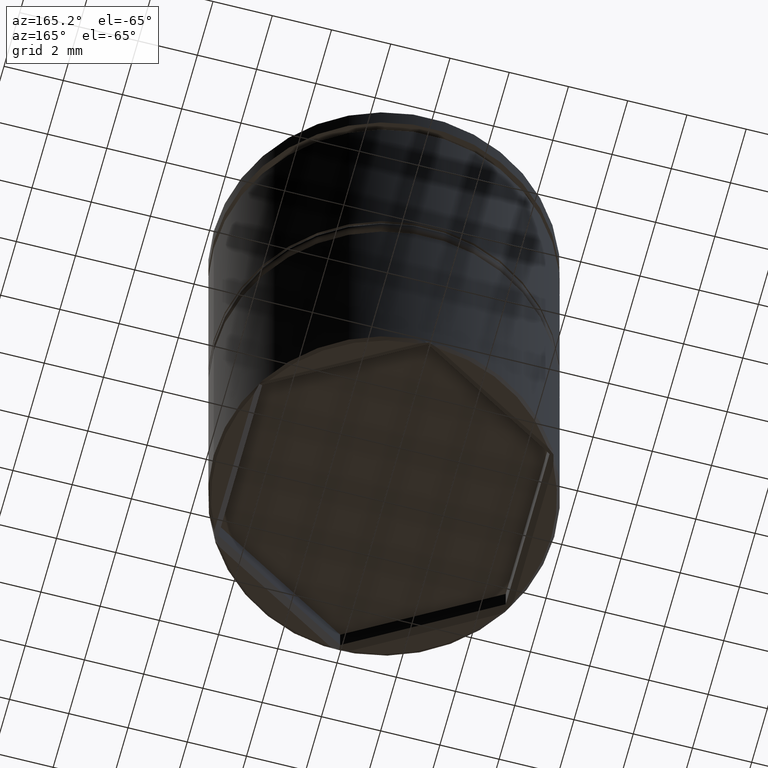
[diagram: clean part render]
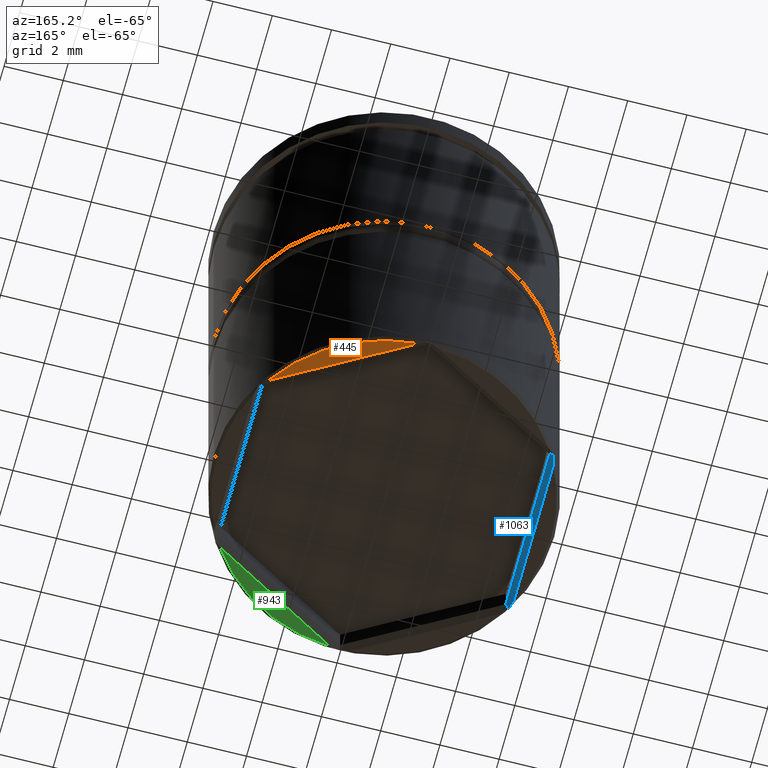
[diagram: same view with three faces highlighted in distinct colors, each labeled with its STEP entity id]
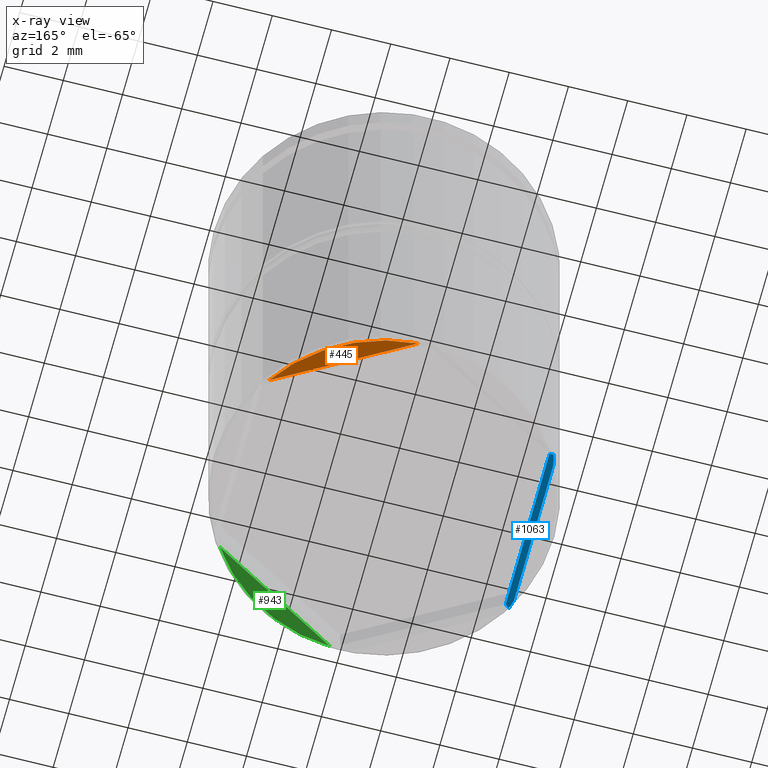
[diagram: x-ray of the same camera — body ghosted, the three highlighted faces saturated]
A machine part, auxiliary view with three faces highlighted in distinct colors.
The next image is the same camera in x-ray (body ghosted, the three faces saturated) — at least one of them is partly hidden behind the body in this view.
Their STEP definitions:

[orange] entity #445 — the highlighted planar face has unit normal (0, 0, -1).
#81 = VECTOR ( 'NONE', #757, 1000.000000000000000 ) ;
#85 = DIRECTION ( 'NONE',  ( -1.000000000000000000, 0.000000000000000000, -0.000000000000000000 ) ) ;
#99 = CARTESIAN_POINT ( 'NONE',  ( 0.000000000000000000, 5.750000000000000000, -17.50000000000000000 ) ) ;
#236 = CARTESIAN_POINT ( 'NONE',  ( 0.1000000000000011713, 5.773502691896253758, -17.50000000000000000 ) ) ;
#242 = AXIS2_PLACEMENT_3D ( 'NONE', #99, #614, #85 ) ;
#286 = DIRECTION ( 'NONE',  ( 0.000000000000000000, 0.000000000000000000, -1.000000000000000000 ) ) ;
#295 = FACE_OUTER_BOUND ( 'NONE', #732, .T. ) ;
#314 = AXIS2_PLACEMENT_3D ( 'NONE', #377, #286, #709 ) ;
#377 = CARTESIAN_POINT ( 'NONE',  ( 0.000000000000000000, 0.000000000000000000, -17.50000000000000000 ) ) ;
#445 = ADVANCED_FACE ( 'NONE', ( #295 ), #1150, .T. ) ;
#536 = CIRCLE ( 'NONE', #314, 5.649999999999996803 ) ;
#575 = CARTESIAN_POINT ( 'NONE',  ( 4.719310825749166050, 3.106542343179421906, -17.50000000000000000 ) ) ;
#614 = DIRECTION ( 'NONE',  ( 0.000000000000000000, 0.000000000000000000, -1.000000000000000000 ) ) ;
#672 = EDGE_CURVE ( 'NONE', #1110, #939, #1364, .T. ) ;
#709 = DIRECTION ( 'NONE',  ( -1.000000000000000000, 0.000000000000000000, 0.000000000000000000 ) ) ;
#732 = EDGE_LOOP ( 'NONE', ( #1004, #1327 ) ) ;
#757 = DIRECTION ( 'NONE',  ( -0.8660254037844387076, 0.4999999999999998335, 0.000000000000000000 ) ) ;
#939 = VERTEX_POINT ( 'NONE', #956 ) ;
#956 = CARTESIAN_POINT ( 'NONE',  ( 0.3306891742508298315, 5.640314235043404345, -17.50000000000000000 ) ) ;
#1004 = ORIENTED_EDGE ( 'NONE', *, *, #1206, .T. ) ;
#1110 = VERTEX_POINT ( 'NONE', #575 ) ;
#1150 = PLANE ( 'NONE',  #242 ) ;
#1206 = EDGE_CURVE ( 'NONE', #939, #1110, #536, .T. ) ;
#1327 = ORIENTED_EDGE ( 'NONE', *, *, #672, .T. ) ;
#1364 = LINE ( 'NONE', #236, #81 ) ;

[blue] entity #1063 — the highlighted planar face has unit normal (0.7071, 0, -0.7071).
#6 = VECTOR ( 'NONE', #1073, 1000.000000000000114 ) ;
#8 = LINE ( 'NONE', #435, #1136 ) ;
#25 = ORIENTED_EDGE ( 'NONE', *, *, #148, .F. ) ;
#38 = CARTESIAN_POINT ( 'NONE',  ( -5.023513024741943944, -2.645625147546241784, -17.47351302474194767 ) ) ;
#52 = EDGE_CURVE ( 'NONE', #400, #234, #1148, .T. ) ;
#68 = VERTEX_POINT ( 'NONE', #1066 ) ;
#86 = CARTESIAN_POINT ( 'NONE',  ( -4.849999999999996980, -2.800148805569682153, -17.30000000000000071 ) ) ;
#116 = VECTOR ( 'NONE', #291, 1000.000000000000114 ) ;
#148 = EDGE_CURVE ( 'NONE', #68, #877, #555, .T. ) ;
#163 = CARTESIAN_POINT ( 'NONE',  ( -4.965887281973972556, -2.867056359013011591, -17.41588728197397273 ) ) ;
#207 = CARTESIAN_POINT ( 'NONE',  ( -4.995443361553345341, 2.756751568350237935, -17.44544336155334818 ) ) ;
#232 = FACE_OUTER_BOUND ( 'NONE', #783, .T. ) ;
#234 = VERTEX_POINT ( 'NONE', #971 ) ;
#253 = EDGE_CURVE ( 'NONE', #285, #1230, #367, .T. ) ;
#285 = VERTEX_POINT ( 'NONE', #901 ) ;
#291 = DIRECTION ( 'NONE',  ( 0.6546536707079763096, 0.3779644730092298621, 0.6546536707079763096 ) ) ;
#343 = CARTESIAN_POINT ( 'NONE',  ( -5.049999999999998934, 2.533771891863980663, -17.50000000000000000 ) ) ;
#367 = B_SPLINE_CURVE_WITH_KNOTS ( 'NONE', 3,
 ( #921, #38, #368, #894 ),
 .UNSPECIFIED., .F., .F.,
 ( 4, 4 ),
 ( 0.000000000000000000, 0.0003538762985991933700 ),
 .UNSPECIFIED. ) ;
#368 = CARTESIAN_POINT ( 'NONE',  ( -4.995443361553347117, -2.756751568350238379, -17.44544336155334818 ) ) ;
#400 = VERTEX_POINT ( 'NONE', #86 ) ;
#421 = CARTESIAN_POINT ( 'NONE',  ( -4.849999999999996980, 2.800148805569683486, -17.30000000000000071 ) ) ;
#435 = CARTESIAN_POINT ( 'NONE',  ( -5.049999999999998934, -2.800148805569682153, -17.50000000000000000 ) ) ;
#456 = CARTESIAN_POINT ( 'NONE',  ( -5.049999999999998934, 2.533771891863980663, -17.50000000000000000 ) ) ;
#555 = B_SPLINE_CURVE_WITH_KNOTS ( 'NONE', 3,
 ( #1055, #207, #1061, #343 ),
 .UNSPECIFIED., .F., .F.,
 ( 4, 4 ),
 ( 0.000000000000000000, 0.0003538762985991938037 ),
 .UNSPECIFIED. ) ;
#562 = DIRECTION ( 'NONE',  ( 0.000000000000000000, -1.000000000000000000, 0.000000000000000000 ) ) ;
#573 = ORIENTED_EDGE ( 'NONE', *, *, #697, .F. ) ;
#620 = ORIENTED_EDGE ( 'NONE', *, *, #635, .T. ) ;
#635 = EDGE_CURVE ( 'NONE', #68, #234, #1094, .T. ) ;
#684 = VECTOR ( 'NONE', #1381, 1000.000000000000000 ) ;
#697 = EDGE_CURVE ( 'NONE', #877, #285, #8, .T. ) ;
#715 = LINE ( 'NONE', #931, #116 ) ;
#767 = DIRECTION ( 'NONE',  ( 0.7071067811865475727, 0.000000000000000000, -0.7071067811865475727 ) ) ;
#783 = EDGE_LOOP ( 'NONE', ( #620, #972, #1306, #1142, #573, #25 ) ) ;
#864 = DIRECTION ( 'NONE',  ( 0.000000000000000000, -1.000000000000000000, 0.000000000000000000 ) ) ;
#877 = VERTEX_POINT ( 'NONE', #456 ) ;
#894 = CARTESIAN_POINT ( 'NONE',  ( -4.965887281973972556, -2.867056359013011591, -17.41588728197397273 ) ) ;
#901 = CARTESIAN_POINT ( 'NONE',  ( -5.049999999999998934, -2.533771891863980663, -17.50000000000000000 ) ) ;
#921 = CARTESIAN_POINT ( 'NONE',  ( -5.049999999999998934, -2.533771891863980663, -17.50000000000000000 ) ) ;
#931 = CARTESIAN_POINT ( 'NONE',  ( -4.849999999999996980, -2.800148805569682153, -17.30000000000000071 ) ) ;
#971 = CARTESIAN_POINT ( 'NONE',  ( -4.849999999999996980, 2.800148805569683486, -17.30000000000000071 ) ) ;
#972 = ORIENTED_EDGE ( 'NONE', *, *, #52, .F. ) ;
#1055 = CARTESIAN_POINT ( 'NONE',  ( -4.965887281973971668, 2.867056359013012923, -17.41588728197397629 ) ) ;
#1061 = CARTESIAN_POINT ( 'NONE',  ( -5.023513024741943944, 2.645625147546241340, -17.47351302474194767 ) ) ;
#1063 = ADVANCED_FACE ( 'NONE', ( #232 ), #1084, .T. ) ;
#1066 = CARTESIAN_POINT ( 'NONE',  ( -4.965887281973971668, 2.867056359013012923, -17.41588728197397629 ) ) ;
#1068 = AXIS2_PLACEMENT_3D ( 'NONE', #1208, #767, #562 ) ;
#1073 = DIRECTION ( 'NONE',  ( 0.6546536707079774198, -0.3779644730092259763, 0.6546536707079774198 ) ) ;
#1084 = PLANE ( 'NONE',  #1068 ) ;
#1094 = LINE ( 'NONE', #1102, #6 ) ;
#1102 = CARTESIAN_POINT ( 'NONE',  ( -4.849999999999996980, 2.800148805569683486, -17.30000000000000071 ) ) ;
#1136 = VECTOR ( 'NONE', #864, 1000.000000000000000 ) ;
#1142 = ORIENTED_EDGE ( 'NONE', *, *, #253, .F. ) ;
#1148 = LINE ( 'NONE', #421, #684 ) ;
#1152 = EDGE_CURVE ( 'NONE', #1230, #400, #715, .T. ) ;
#1208 = CARTESIAN_POINT ( 'NONE',  ( -4.849999999999996980, -2.800148805569682153, -17.30000000000000071 ) ) ;
#1230 = VERTEX_POINT ( 'NONE', #163 ) ;
#1306 = ORIENTED_EDGE ( 'NONE', *, *, #1152, .F. ) ;
#1381 = DIRECTION ( 'NONE',  ( 0.000000000000000000, 1.000000000000000000, 0.000000000000000000 ) ) ;

[green] entity #943 — the highlighted planar face has unit normal (0, 0, -1).
#159 = VERTEX_POINT ( 'NONE', #1100 ) ;
#195 = CARTESIAN_POINT ( 'NONE',  ( 0.000000000000000000, 0.000000000000000000, -17.50000000000000000 ) ) ;
#300 = AXIS2_PLACEMENT_3D ( 'NONE', #195, #515, #953 ) ;
#312 = PLANE ( 'NONE',  #570 ) ;
#325 = ORIENTED_EDGE ( 'NONE', *, *, #387, .T. ) ;
#337 = VERTEX_POINT ( 'NONE', #616 ) ;
#387 = EDGE_CURVE ( 'NONE', #337, #159, #427, .T. ) ;
#418 = DIRECTION ( 'NONE',  ( 0.000000000000000000, 0.000000000000000000, -1.000000000000000000 ) ) ;
#427 = CIRCLE ( 'NONE', #300, 5.649999999999996803 ) ;
#515 = DIRECTION ( 'NONE',  ( 0.000000000000000000, 0.000000000000000000, -1.000000000000000000 ) ) ;
#570 = AXIS2_PLACEMENT_3D ( 'NONE', #936, #418, #1057 ) ;
#605 = FACE_OUTER_BOUND ( 'NONE', #853, .T. ) ;
#616 = CARTESIAN_POINT ( 'NONE',  ( 4.719310825749163385, -3.106542343179425458, -17.50000000000000000 ) ) ;
#721 = LINE ( 'NONE', #1368, #1112 ) ;
#853 = EDGE_LOOP ( 'NONE', ( #325, #995 ) ) ;
#936 = CARTESIAN_POINT ( 'NONE',  ( 0.000000000000000000, 5.750000000000000000, -17.50000000000000000 ) ) ;
#943 = ADVANCED_FACE ( 'NONE', ( #605 ), #312, .T. ) ;
#953 = DIRECTION ( 'NONE',  ( -1.000000000000000000, 0.000000000000000000, 0.000000000000000000 ) ) ;
#963 = EDGE_CURVE ( 'NONE', #159, #337, #721, .T. ) ;
#995 = ORIENTED_EDGE ( 'NONE', *, *, #963, .T. ) ;
#1057 = DIRECTION ( 'NONE',  ( -1.000000000000000000, 0.000000000000000000, -0.000000000000000000 ) ) ;
#1100 = CARTESIAN_POINT ( 'NONE',  ( 0.3306891742508328291, -5.640314235043405233, -17.50000000000000000 ) ) ;
#1112 = VECTOR ( 'NONE', #1251, 1000.000000000000114 ) ;
#1251 = DIRECTION ( 'NONE',  ( 0.8660254037844388186, 0.4999999999999997780, 0.000000000000000000 ) ) ;
#1368 = CARTESIAN_POINT ( 'NONE',  ( 4.949999999999997513, -2.973353886326572937, -17.50000000000000000 ) ) ;